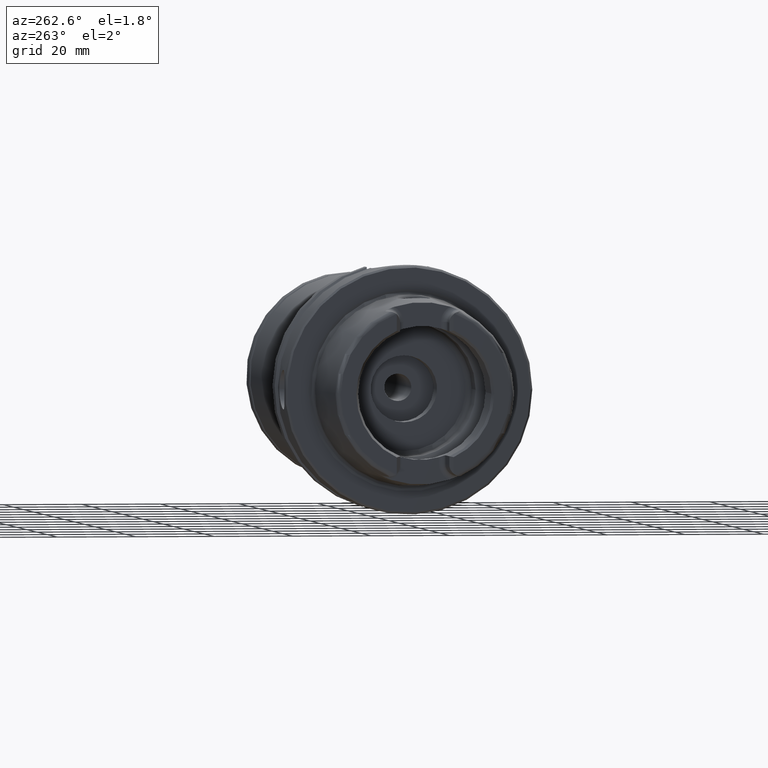
[diagram: clean part render]
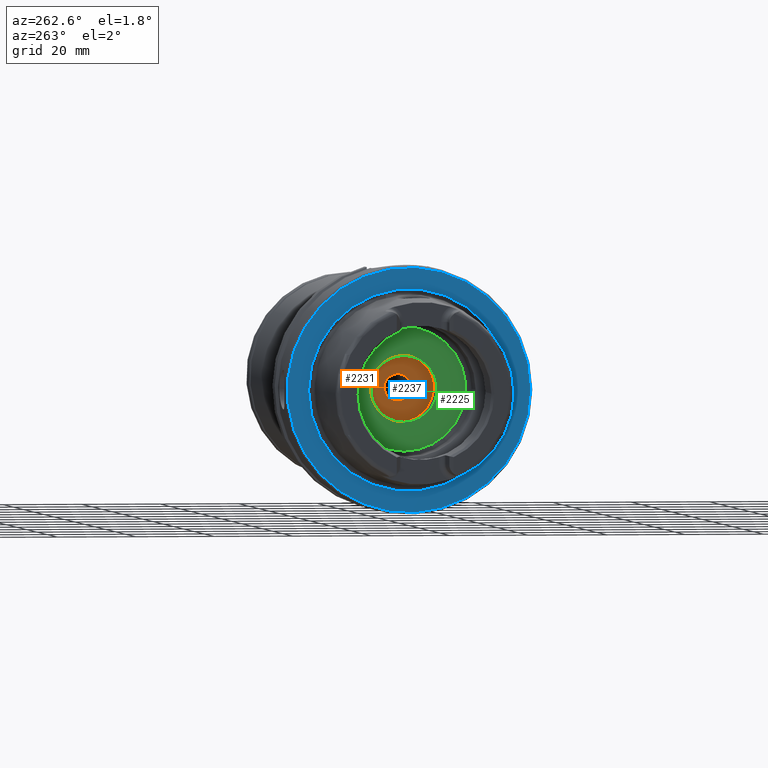
[diagram: same view with three faces highlighted in distinct colors, each labeled with its STEP entity id]
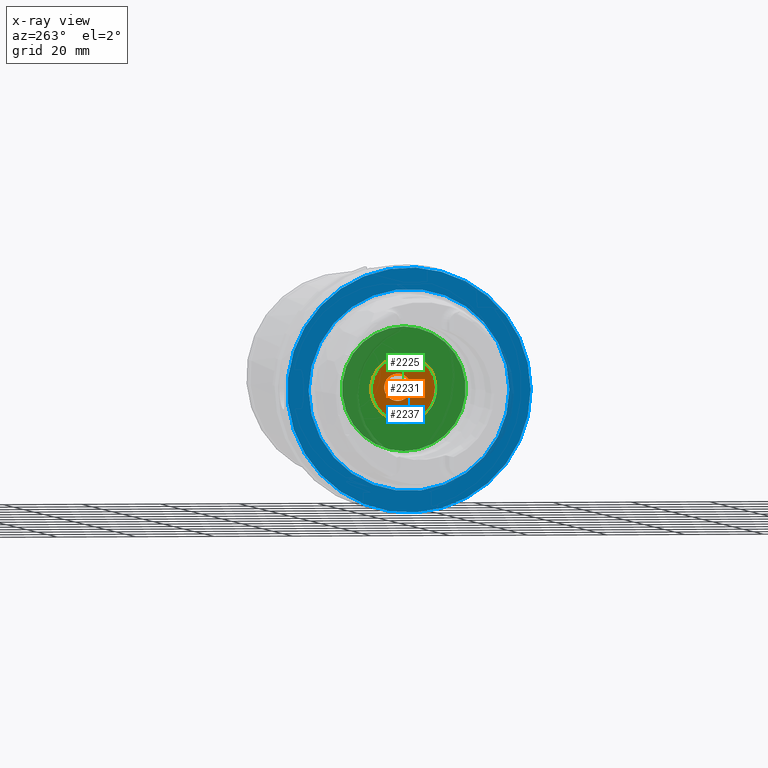
[diagram: x-ray of the same camera — body ghosted, the three highlighted faces saturated]
A machine part, auxiliary view with three faces highlighted in distinct colors.
The next image is the same camera in x-ray (body ghosted, the three faces saturated) — at least one of them is partly hidden behind the body in this view.
Their STEP definitions:

[orange] entity #2231 — the highlighted planar face has unit normal (1, 0, 0).
#108=FACE_BOUND('',#444,.T.);
#149=PLANE('',#2519);
#309=FACE_OUTER_BOUND('',#443,.T.);
#443=EDGE_LOOP('',(#2020));
#444=EDGE_LOOP('',(#2021));
#685=CIRCLE('',#2271,3.4585);
#817=CIRCLE('',#2520,9.5);
#833=VERTEX_POINT('',#3227);
#1047=VERTEX_POINT('',#4713);
#1057=EDGE_CURVE('',#833,#833,#685,.T.);
#1378=EDGE_CURVE('',#1047,#1047,#817,.T.);
#2020=ORIENTED_EDGE('',*,*,#1378,.T.);
#2021=ORIENTED_EDGE('',*,*,#1057,.T.);
#2231=ADVANCED_FACE('',(#309,#108),#149,.F.);
#2271=AXIS2_PLACEMENT_3D('',#3229,#2556,#2557);
#2519=AXIS2_PLACEMENT_3D('',#4712,#3158,#3159);
#2520=AXIS2_PLACEMENT_3D('',#4714,#3160,#3161);
#2556=DIRECTION('center_axis',(1.,0.,0.));
#2557=DIRECTION('ref_axis',(0.,0.,-1.));
#3158=DIRECTION('center_axis',(1.,0.,0.));
#3159=DIRECTION('ref_axis',(0.,0.,-1.));
#3160=DIRECTION('center_axis',(-1.,0.,0.));
#3161=DIRECTION('ref_axis',(0.,0.,1.));
#3227=CARTESIAN_POINT('',(22.,-4.23544095485112E-16,3.4585));
#3229=CARTESIAN_POINT('Origin',(22.,0.,0.));
#4712=CARTESIAN_POINT('Origin',(22.,9.5,0.));
#4713=CARTESIAN_POINT('',(22.,-9.5,1.16341445918999E-15));
#4714=CARTESIAN_POINT('Origin',(22.,0.,0.));

[blue] entity #2237 — the highlighted planar face has unit normal (-1, 0, 0).
#109=FACE_BOUND('',#451,.T.);
#150=PLANE('',#2533);
#315=FACE_OUTER_BOUND('',#450,.T.);
#450=EDGE_LOOP('',(#2046));
#451=EDGE_LOOP('',(#2047));
#824=CIRCLE('',#2532,25.5879092835167);
#825=CIRCLE('',#2534,31.);
#1053=VERTEX_POINT('',#4734);
#1054=VERTEX_POINT('',#4738);
#1389=EDGE_CURVE('',#1053,#1053,#824,.T.);
#1390=EDGE_CURVE('',#1054,#1054,#825,.T.);
#2046=ORIENTED_EDGE('',*,*,#1390,.F.);
#2047=ORIENTED_EDGE('',*,*,#1389,.T.);
#2237=ADVANCED_FACE('',(#315,#109),#150,.T.);
#2532=AXIS2_PLACEMENT_3D('',#4736,#3188,#3189);
#2533=AXIS2_PLACEMENT_3D('',#4737,#3190,#3191);
#2534=AXIS2_PLACEMENT_3D('',#4739,#3192,#3193);
#3188=DIRECTION('center_axis',(1.,0.,0.));
#3189=DIRECTION('ref_axis',(0.,0.,-1.));
#3190=DIRECTION('center_axis',(-1.,0.,0.));
#3191=DIRECTION('ref_axis',(0.,0.,1.));
#3192=DIRECTION('center_axis',(1.,0.,0.));
#3193=DIRECTION('ref_axis',(0.,0.,-1.));
#4734=CARTESIAN_POINT('',(-9.0205620750794E-16,-25.5879092835167,-3.13361512009315E-15));
#4736=CARTESIAN_POINT('Origin',(0.,0.,0.));
#4737=CARTESIAN_POINT('Origin',(0.,31.,0.));
#4738=CARTESIAN_POINT('',(-1.04083408558608E-15,-31.,-3.7964050773568E-15));
#4739=CARTESIAN_POINT('Origin',(0.,0.,0.));

[green] entity #2225 — the highlighted planar face has unit normal (1, 0, 0).
#107=FACE_BOUND('',#437,.T.);
#148=PLANE('',#2503);
#303=FACE_OUTER_BOUND('',#436,.T.);
#436=EDGE_LOOP('',(#1989));
#437=EDGE_LOOP('',(#1990));
#804=CIRCLE('',#2499,8.458734);
#807=CIRCLE('',#2504,15.75);
#1037=VERTEX_POINT('',#4679);
#1040=VERTEX_POINT('',#4688);
#1362=EDGE_CURVE('',#1037,#1037,#804,.T.);
#1366=EDGE_CURVE('',#1040,#1040,#807,.T.);
#1989=ORIENTED_EDGE('',*,*,#1366,.T.);
#1990=ORIENTED_EDGE('',*,*,#1362,.T.);
#2225=ADVANCED_FACE('',(#303,#107),#148,.F.);
#2499=AXIS2_PLACEMENT_3D('',#4680,#3115,#3116);
#2503=AXIS2_PLACEMENT_3D('',#4687,#3124,#3125);
#2504=AXIS2_PLACEMENT_3D('',#4689,#3126,#3127);
#3115=DIRECTION('center_axis',(1.,0.,0.));
#3116=DIRECTION('ref_axis',(0.,0.,1.));
#3124=DIRECTION('center_axis',(1.,0.,0.));
#3125=DIRECTION('ref_axis',(0.,0.,-1.));
#3126=DIRECTION('center_axis',(-1.,0.,0.));
#3127=DIRECTION('ref_axis',(0.,0.,1.));
#4679=CARTESIAN_POINT('',(10.,-1.03589615179389E-15,-8.458734));
#4680=CARTESIAN_POINT('Origin',(10.,0.,0.));
#4687=CARTESIAN_POINT('Origin',(10.,15.75,0.));
#4688=CARTESIAN_POINT('',(10.,-1.92881870865708E-15,-15.75));
#4689=CARTESIAN_POINT('Origin',(10.,0.,0.));